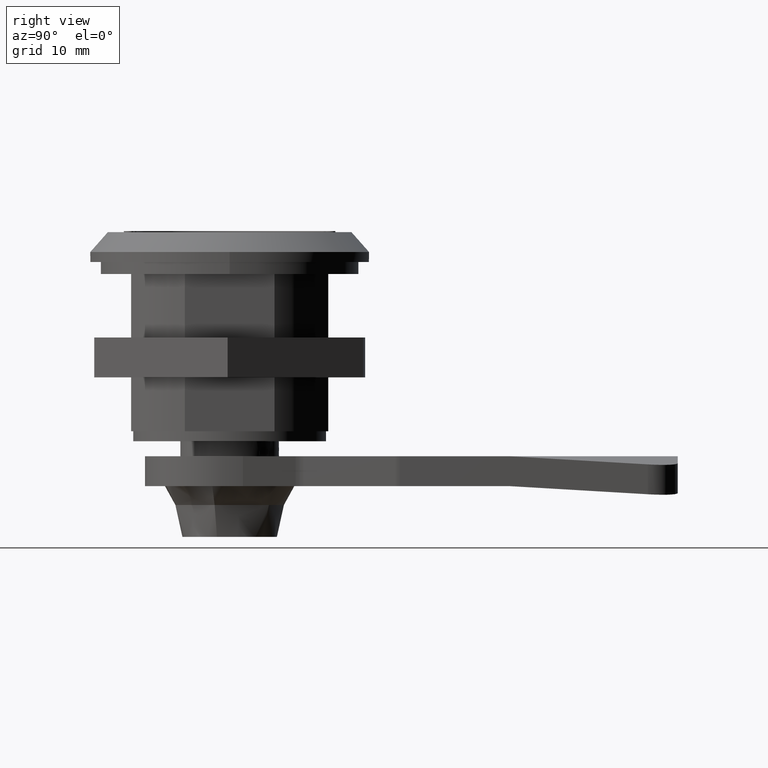
[diagram: clean part render]
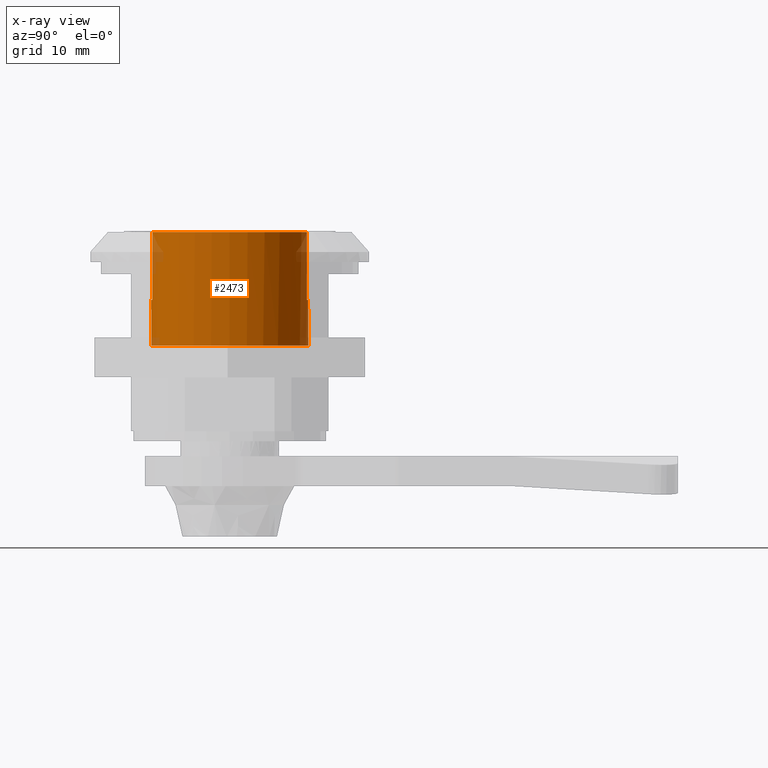
[diagram: x-ray — body ghosted, one internal face saturated and labeled with its STEP entity id]
A machine part, right view, then the same camera in x-ray: the body is ghosted and one INTERNAL B-rep face — a face not visible from any outside direction — is saturated and labeled: STEP entity #2473.
In plain terms, the highlighted cylindrical surface (bore or boss wall) has radius 7.9 mm, axis along (-0, -0, 1).
Its self-contained STEP definition (entity closure, byte-faithful):
#129=FACE_BOUND('',#893,.T.);
#257=LINE('',#4034,#474);
#258=LINE('',#4037,#475);
#260=LINE('',#4041,#477);
#263=LINE('',#4046,#480);
#474=VECTOR('',#3171,6.8);
#475=VECTOR('',#3174,6.8);
#477=VECTOR('',#3178,6.8);
#480=VECTOR('',#3183,6.8);
#603=CYLINDRICAL_SURFACE('',#2705,7.9);
#714=FACE_OUTER_BOUND('',#892,.T.);
#892=EDGE_LOOP('',(#2071,#2072,#2073,#2074,#2075,#2076,#2077,#2078));
#893=EDGE_LOOP('',(#2079));
#1001=CIRCLE('',#2655,7.9);
#1003=CIRCLE('',#2657,7.9);
#1006=CIRCLE('',#2667,7.9);
#1007=CIRCLE('',#2669,7.9);
#1025=CIRCLE('',#2706,7.9);
#1173=VERTEX_POINT('',#4006);
#1174=VERTEX_POINT('',#4008);
#1177=VERTEX_POINT('',#4014);
#1178=VERTEX_POINT('',#4016);
#1183=VERTEX_POINT('',#4032);
#1184=VERTEX_POINT('',#4036);
#1185=VERTEX_POINT('',#4040);
#1186=VERTEX_POINT('',#4044);
#1216=VERTEX_POINT('',#4212);
#1452=EDGE_CURVE('',#1174,#1173,#1001,.T.);
#1456=EDGE_CURVE('',#1178,#1177,#1003,.T.);
#1465=EDGE_CURVE('',#1173,#1183,#257,.T.);
#1466=EDGE_CURVE('',#1184,#1174,#258,.T.);
#1468=EDGE_CURVE('',#1185,#1178,#260,.T.);
#1471=EDGE_CURVE('',#1177,#1186,#263,.T.);
#1472=EDGE_CURVE('',#1185,#1183,#1006,.T.);
#1473=EDGE_CURVE('',#1184,#1186,#1007,.T.);
#1515=EDGE_CURVE('',#1216,#1216,#1025,.T.);
#2071=ORIENTED_EDGE('',*,*,#1471,.T.);
#2072=ORIENTED_EDGE('',*,*,#1473,.F.);
#2073=ORIENTED_EDGE('',*,*,#1466,.T.);
#2074=ORIENTED_EDGE('',*,*,#1452,.T.);
#2075=ORIENTED_EDGE('',*,*,#1465,.T.);
#2076=ORIENTED_EDGE('',*,*,#1472,.F.);
#2077=ORIENTED_EDGE('',*,*,#1468,.T.);
#2078=ORIENTED_EDGE('',*,*,#1456,.T.);
#2079=ORIENTED_EDGE('',*,*,#1515,.F.);
#2473=ADVANCED_FACE('',(#714,#129),#603,.T.);
#2655=AXIS2_PLACEMENT_3D('',#4009,#3147,#3148);
#2657=AXIS2_PLACEMENT_3D('',#4017,#3153,#3154);
#2667=AXIS2_PLACEMENT_3D('',#4048,#3186,#3187);
#2669=AXIS2_PLACEMENT_3D('',#4050,#3190,#3191);
#2705=AXIS2_PLACEMENT_3D('',#4211,#3278,#3279);
#2706=AXIS2_PLACEMENT_3D('',#4213,#3280,#3281);
#3147=DIRECTION('center_axis',(0.,0.,-1.));
#3148=DIRECTION('ref_axis',(-1.,0.,0.));
#3153=DIRECTION('center_axis',(0.,0.,-1.));
#3154=DIRECTION('ref_axis',(-1.,0.,0.));
#3171=DIRECTION('',(0.,0.,1.));
#3174=DIRECTION('',(0.,0.,-1.));
#3178=DIRECTION('',(0.,0.,-1.));
#3183=DIRECTION('',(0.,0.,1.));
#3186=DIRECTION('center_axis',(0.,0.,1.));
#3187=DIRECTION('ref_axis',(-1.,0.,0.));
#3190=DIRECTION('center_axis',(0.,0.,1.));
#3191=DIRECTION('ref_axis',(-1.,0.,0.));
#3278=DIRECTION('center_axis',(0.,0.,1.));
#3279=DIRECTION('ref_axis',(-1.,0.,0.));
#3280=DIRECTION('center_axis',(0.,0.,-1.));
#3281=DIRECTION('ref_axis',(-1.,0.,0.));
#4006=CARTESIAN_POINT('',(-1.5,-7.75628777186611,4.6));
#4008=CARTESIAN_POINT('',(1.49999999999999,-7.75628777186613,4.6));
#4009=CARTESIAN_POINT('Origin',(0.,0.,4.6));
#4014=CARTESIAN_POINT('',(1.5,7.75628777186611,4.6));
#4016=CARTESIAN_POINT('',(-1.50000000000001,7.75628777186613,4.6));
#4017=CARTESIAN_POINT('Origin',(0.,0.,4.6));
#4032=CARTESIAN_POINT('',(-1.5,-7.75628777186611,11.4));
#4034=CARTESIAN_POINT('',(-1.5,-7.75628777186613,0.));
#4036=CARTESIAN_POINT('',(1.49999999999999,-7.75628777186613,11.4));
#4037=CARTESIAN_POINT('',(1.49999999999999,-7.75628777186613,0.));
#4040=CARTESIAN_POINT('',(-1.50000000000001,7.75628777186613,11.4));
#4041=CARTESIAN_POINT('',(-1.50000000000001,7.75628777186613,0.));
#4044=CARTESIAN_POINT('',(1.5,7.75628777186611,11.4));
#4046=CARTESIAN_POINT('',(1.5,7.75628777186613,0.));
#4048=CARTESIAN_POINT('Origin',(0.,0.,11.4));
#4050=CARTESIAN_POINT('Origin',(0.,0.,11.4));
#4211=CARTESIAN_POINT('Origin',(0.,0.,0.));
#4212=CARTESIAN_POINT('',(7.9,9.67470971326409E-16,0.));
#4213=CARTESIAN_POINT('Origin',(0.,0.,0.));